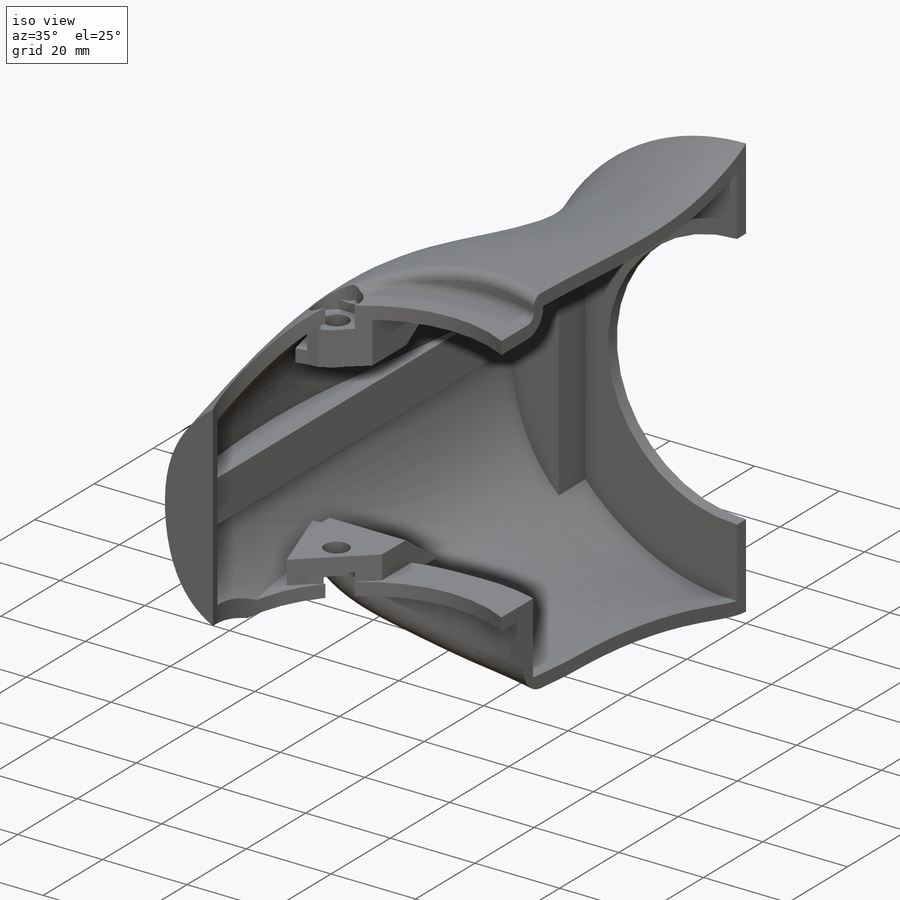
[diagram: iso view]
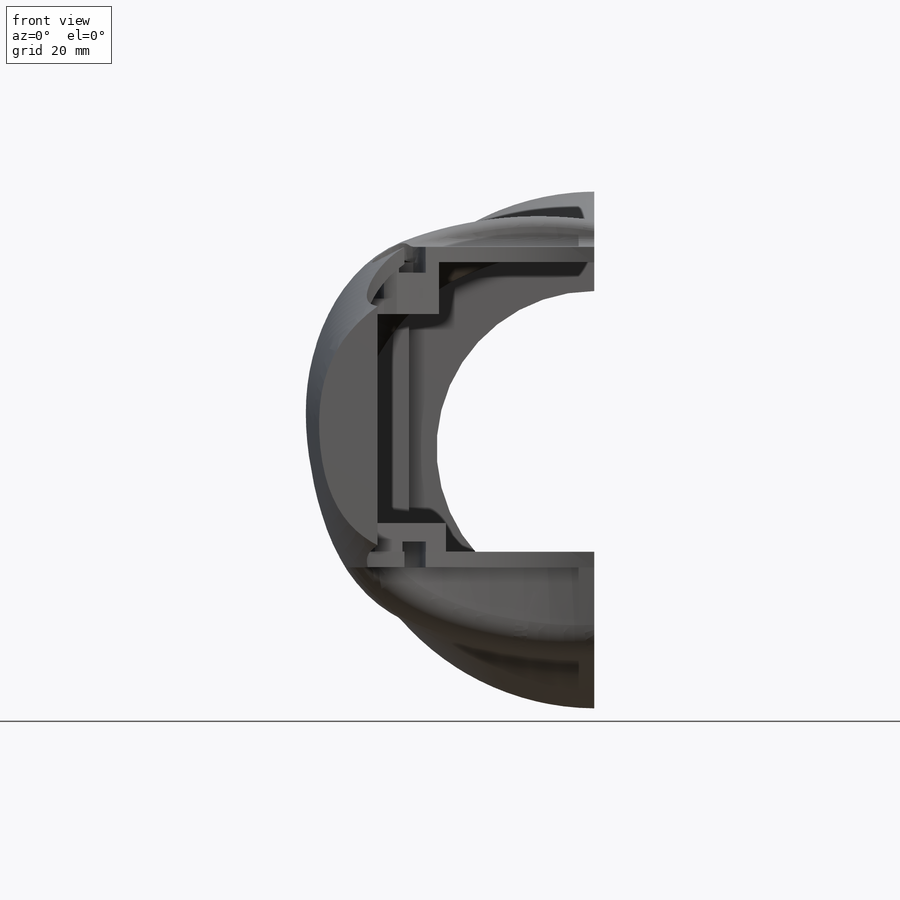
[diagram: front view]
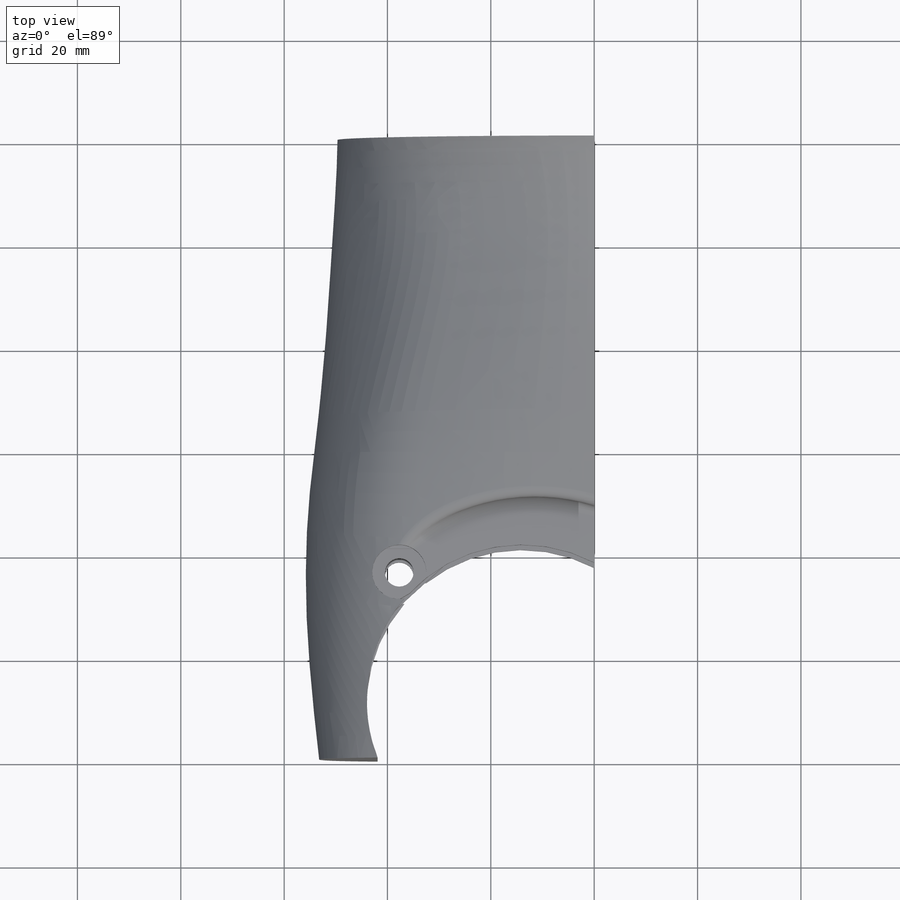
[diagram: top view]
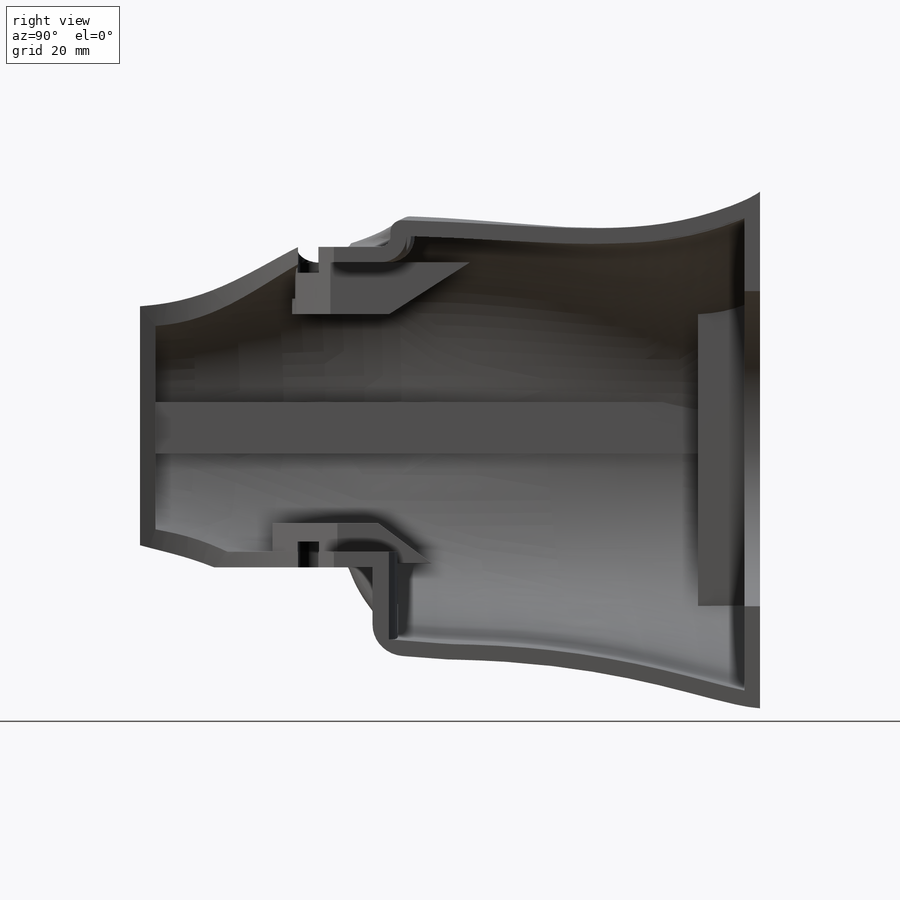
[diagram: right view]
SOLIDWORKS PART (.sldprt)
format: sldprt  version: not decoded by parser v0  size: 3,193,856 bytes
history: native  units: mm
features: sketch x14, cut_extrude x7, extrude x7, fillet x2, material x1, shell x1, plane x1 (+14 scaffold rows collapsed)
feature tree (47):
  scaffold x14  (default folders/planes/origin — collapsed)
  material  "ABS"
  shell  "Shell1"  Thickness=3mm
  plane  "Plane1"  Offset=50mm
  sketch  "Sketch1"  dims[D3=60.0mm D1=109.0mm D2=14.0mm]
  cut_extrude  "Extrude1"  Depth=88mm
  sketch  "Sketch2"  dims[D1=0.0mm]
  cut_extrude  "Extrude2"  Depth=3.5mm
  sketch  "Sketch7"
  extrude  "Extrude5"  Depth=5.5mm
  sketch  "Sketch9"
  extrude  "Extrude6"  Depth=10mm
  sketch  "Sketch8"  dims[D1=10.5mm]
  cut_extrude  "Cut-Extrude3"  Depth=5mm
  sketch  "Sketch5"
  cut_extrude  "Cut-Extrude1"  Depth=83.622316mm
  sketch  "Sketch6"  dims[D1=10.5mm]
  cut_extrude  "Cut-Extrude2"  Depth=5mm
  sketch  "Sketch10"
  extrude  "Extrude7"  Depth=3mm
  sketch  "Sketch13"
  extrude  "Extrude9"  Depth=10mm
  fillet  "Fillet1"  Radius=10mm
  sketch  "Sketch15"
  extrude  "Extrude11"  Depth=11mm
  fillet  "Fillet2"  Radius=6mm
  sketch  "Sketch18"
  extrude  "Extrude15"  Depth=18mm
  sketch  "Sketch19"
  extrude  "Extrude16"  Depth=9mm
  sketch  "Sketch20"  dims[D1=4.9mm D2=25.0mm D3=40.0mm]
  cut_extrude  "Extrude17"  Depth=9mm
  sketch  "Sketch21"  dims[D1=61.0mm]
  cut_extrude  "Extrude18"  Depth=10mm
decode coverage: 23 of 31 modeling features carry decoded parameters
note: suppression state not decoded; provenance and decode notes live in map.json
